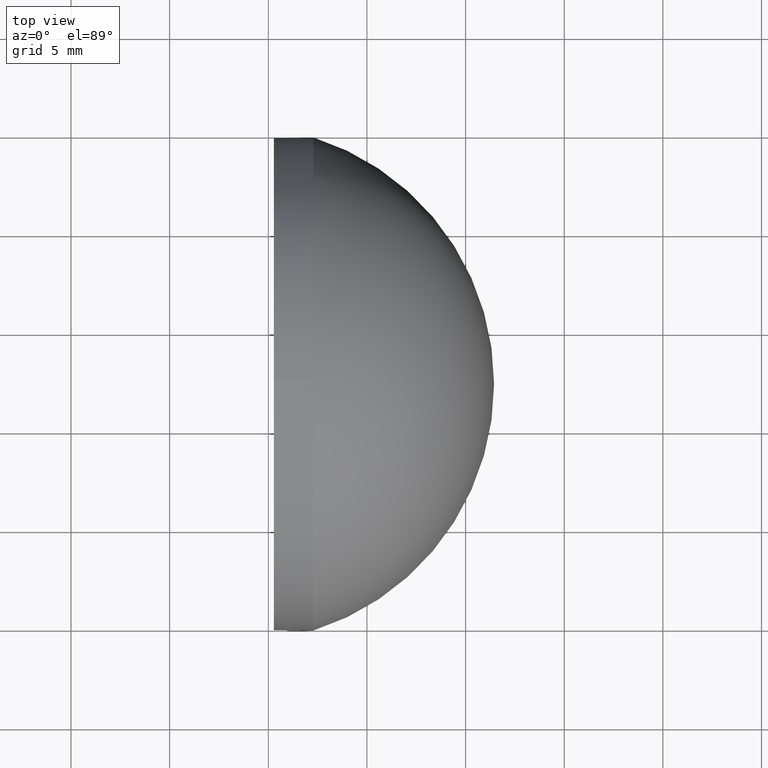
[diagram: clean part render]
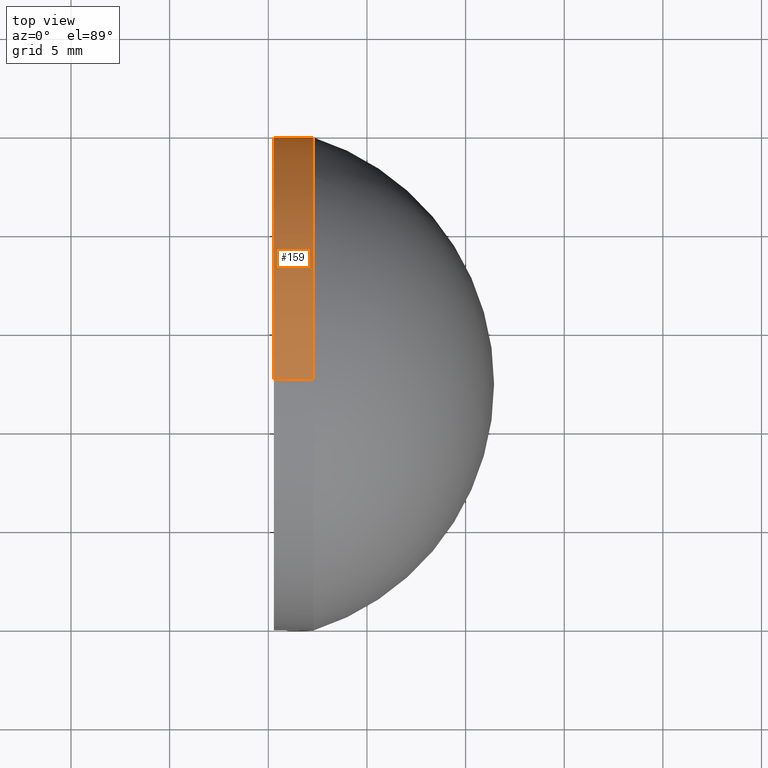
[diagram: same view with one face highlighted and labeled with its STEP entity id]
A machine part, top view. The second image highlights one B-rep face of the part: STEP entity #159.
In plain terms, the highlighted cylindrical surface (partial cylindrical patch) has radius 12.5 mm, axis along (-1, -0, -0).
Its self-contained STEP definition (entity closure, byte-faithful):
#3 = VERTEX_POINT ( 'NONE', #131 ) ;
#17 = FACE_OUTER_BOUND ( 'NONE', #185, .T. ) ;
#23 = ORIENTED_EDGE ( 'NONE', *, *, #146, .T. ) ;
#27 = EDGE_CURVE ( 'NONE', #70, #3, #100, .T. ) ;
#30 = DIRECTION ( 'NONE',  ( -1.000000000000000000, -0.0000000000000000000, -0.0000000000000000000 ) ) ;
#33 = DIRECTION ( 'NONE',  ( -1.000000000000000000, -0.0000000000000000000, -0.0000000000000000000 ) ) ;
#40 = ORIENTED_EDGE ( 'NONE', *, *, #79, .T. ) ;
#41 = AXIS2_PLACEMENT_3D ( 'NONE', #117, #33, #75 ) ;
#42 = CIRCLE ( 'NONE', #73, 12.49999999999999600 ) ;
#53 = VECTOR ( 'NONE', #78, 1000.000000000000000 ) ;
#61 = DIRECTION ( 'NONE',  ( 0.0000000000000000000, 0.0000000000000000000, 1.000000000000000000 ) ) ;
#63 = DIRECTION ( 'NONE',  ( -1.000000000000000000, -0.0000000000000000000, -0.0000000000000000000 ) ) ;
#64 = CYLINDRICAL_SURFACE ( 'NONE', #71, 12.49999999999999600 ) ;
#70 = VERTEX_POINT ( 'NONE', #160 ) ;
#71 = AXIS2_PLACEMENT_3D ( 'NONE', #153, #63, #134 ) ;
#73 = AXIS2_PLACEMENT_3D ( 'NONE', #95, #136, #61 ) ;
#75 = DIRECTION ( 'NONE',  ( 0.0000000000000000000, 0.0000000000000000000, 1.000000000000000000 ) ) ;
#78 = DIRECTION ( 'NONE',  ( -1.000000000000000000, -0.0000000000000000000, -0.0000000000000000000 ) ) ;
#79 = EDGE_CURVE ( 'NONE', #70, #152, #141, .T. ) ;
#87 = VERTEX_POINT ( 'NONE', #161 ) ;
#95 = CARTESIAN_POINT ( 'NONE',  ( 207.2844079542375400, -102.6914362713783400, 0.0000000000000000000 ) ) ;
#100 = LINE ( 'NONE', #164, #108 ) ;
#102 = CIRCLE ( 'NONE', #169, 12.49999999999999600 ) ;
#104 = ORIENTED_EDGE ( 'NONE', *, *, #27, .F. ) ;
#108 = VECTOR ( 'NONE', #132, 1000.000000000000000 ) ;
#109 = EDGE_CURVE ( 'NONE', #3, #87, #102, .T. ) ;
#115 = EDGE_CURVE ( 'NONE', #152, #174, #42, .T. ) ;
#117 = CARTESIAN_POINT ( 'NONE',  ( 207.2844079542375400, -102.6914362713783400, 0.0000000000000000000 ) ) ;
#120 = LINE ( 'NONE', #135, #53 ) ;
#129 = DIRECTION ( 'NONE',  ( 0.0000000000000000000, 0.0000000000000000000, 1.000000000000000000 ) ) ;
#131 = CARTESIAN_POINT ( 'NONE',  ( 205.2844079542375400, -102.6914362713783400, 12.49999999999999600 ) ) ;
#132 = DIRECTION ( 'NONE',  ( -1.000000000000000000, -0.0000000000000000000, -0.0000000000000000000 ) ) ;
#134 = DIRECTION ( 'NONE',  ( 0.0000000000000000000, 0.0000000000000000000, 1.000000000000000000 ) ) ;
#135 = CARTESIAN_POINT ( 'NONE',  ( 203.7723767123476400, -102.6914362713783400, -12.49999999999999600 ) ) ;
#136 = DIRECTION ( 'NONE',  ( -1.000000000000000000, -0.0000000000000000000, -0.0000000000000000000 ) ) ;
#141 = CIRCLE ( 'NONE', #41, 12.49999999999999600 ) ;
#146 = EDGE_CURVE ( 'NONE', #174, #87, #120, .T. ) ;
#152 = VERTEX_POINT ( 'NONE', #167 ) ;
#153 = CARTESIAN_POINT ( 'NONE',  ( 203.7723767123476400, -102.6914362713783400, 0.0000000000000000000 ) ) ;
#158 = ORIENTED_EDGE ( 'NONE', *, *, #115, .T. ) ;
#159 = ADVANCED_FACE ( 'NONE', ( #17 ), #64, .T. ) ;
#160 = CARTESIAN_POINT ( 'NONE',  ( 207.2844079542375400, -102.6914362713783400, 12.49999999999999600 ) ) ;
#161 = CARTESIAN_POINT ( 'NONE',  ( 205.2844079542375400, -102.6914362713783400, -12.49999999999999600 ) ) ;
#164 = CARTESIAN_POINT ( 'NONE',  ( 203.7723767123476400, -102.6914362713783400, 12.49999999999999600 ) ) ;
#167 = CARTESIAN_POINT ( 'NONE',  ( 207.2844079542375400, -90.19143627137832200, 0.0000000000000000000 ) ) ;
#168 = CARTESIAN_POINT ( 'NONE',  ( 207.2844079542375400, -102.6914362713783400, -12.49999999999999600 ) ) ;
#169 = AXIS2_PLACEMENT_3D ( 'NONE', #186, #30, #129 ) ;
#174 = VERTEX_POINT ( 'NONE', #168 ) ;
#181 = ORIENTED_EDGE ( 'NONE', *, *, #109, .F. ) ;
#185 = EDGE_LOOP ( 'NONE', ( #158, #23, #181, #104, #40 ) ) ;
#186 = CARTESIAN_POINT ( 'NONE',  ( 205.2844079542375400, -102.6914362713783400, 0.0000000000000000000 ) ) ;